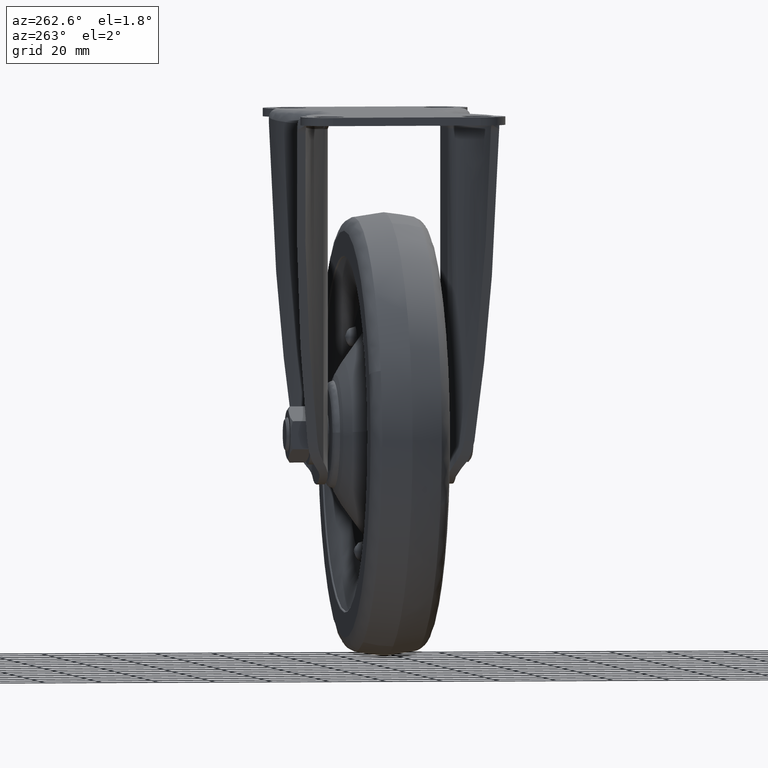
[diagram: clean part render]
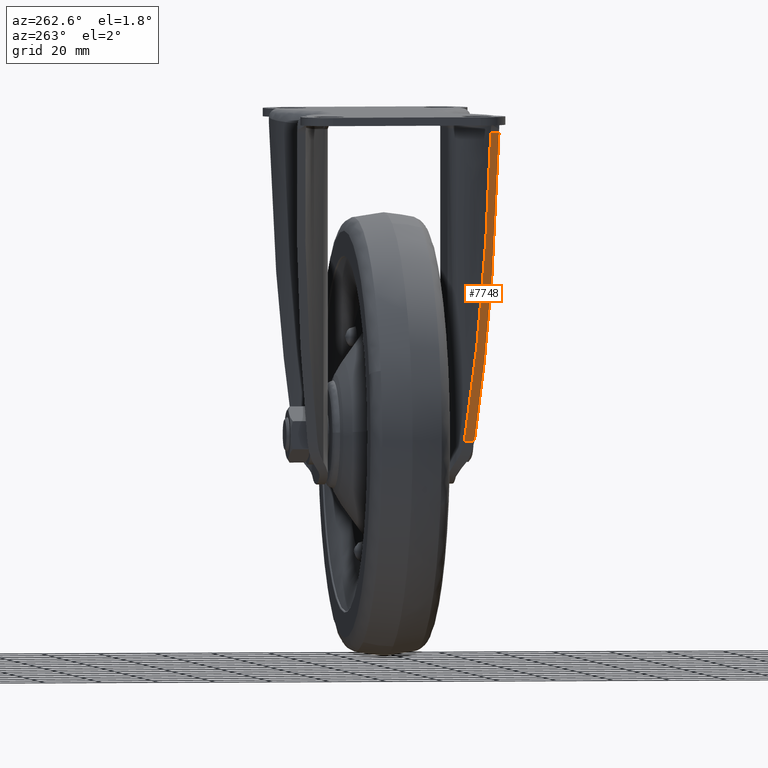
[diagram: same view with one face highlighted and labeled with its STEP entity id]
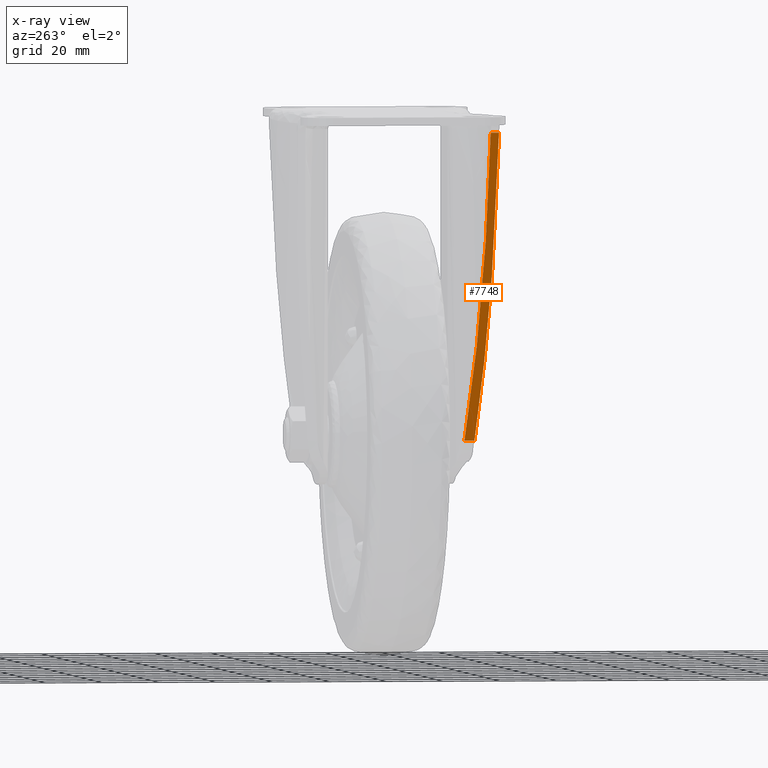
[diagram: x-ray of the same camera — body ghosted, the highlighted face saturated]
A machine part, auxiliary view. The second image highlights one B-rep face of the part: STEP entity #7748.
The next image is the same camera in x-ray: the body ghosted, the highlighted face saturated — about 0% of this face is hidden behind the body in this view.
In plain terms, the highlighted face is a freeform B-spline surface patch.
Its self-contained STEP definition (entity closure, byte-faithful):
#5961=CARTESIAN_POINT('',(-38.384969815767107,-32.595007900842553,-6.183895033378120));
#5962=VERTEX_POINT('',#5961);
#6040=CARTESIAN_POINT('',(-18.693041682196601,-25.869434690258650,-114.401500746498200));
#6041=VERTEX_POINT('',#6040);
#6061=CARTESIAN_POINT('',(-38.384969815767107,-32.595007900842553,-6.183895033378120));
#6062=CARTESIAN_POINT('',(-27.454555737698527,-32.407402208464745,-66.252326776485901));
#6063=CARTESIAN_POINT('',(-18.693041682196601,-25.869434690258679,-114.401500746498200));
#6071=(BOUNDED_CURVE()B_SPLINE_CURVE(2,(#6061,#6062,#6063),.UNSPECIFIED.,.F.,.U.)CURVE()GEOMETRIC_REPRESENTATION_ITEM()QUASI_UNIFORM_CURVE()RATIONAL_B_SPLINE_CURVE((1.0,0.951735064180671,1.0))REPRESENTATION_ITEM(''));
#6072=EDGE_CURVE('',#5962,#6041,#6071,.T.);
#6264=CARTESIAN_POINT('',(-38.384969815767107,-35.495401359037047,-6.183895033378110));
#6265=VERTEX_POINT('',#6264);
#6275=CARTESIAN_POINT('',(-18.693041682196601,-29.411709804403500,-114.401500746498200));
#6276=VERTEX_POINT('',#6275);
#6277=CARTESIAN_POINT('',(-38.384969815767128,-35.495401359037061,-6.183895033378110));
#6278=CARTESIAN_POINT('',(-27.651675467620674,-35.325700557248780,-65.169049147891229));
#6279=CARTESIAN_POINT('',(-18.693041682196611,-29.411709804403550,-114.401500746498200));
#6287=(BOUNDED_CURVE()B_SPLINE_CURVE(2,(#6277,#6278,#6279),.UNSPECIFIED.,.F.,.U.)CURVE()GEOMETRIC_REPRESENTATION_ITEM()QUASI_UNIFORM_CURVE()RATIONAL_B_SPLINE_CURVE((1.0,0.959989373029339,1.0))REPRESENTATION_ITEM(''));
#6288=EDGE_CURVE('',#6265,#6276,#6287,.T.);
#7606=CARTESIAN_POINT('',(-38.384969815767107,-35.495401359037047,-6.183895033378110));
#7607=CARTESIAN_POINT('',(-38.384969815767107,-32.595007900842553,-6.183895033378120));
#7608=QUASI_UNIFORM_CURVE('',1,(#7606,#7607),.UNSPECIFIED.,.F.,.U.);
#7609=EDGE_CURVE('',#6265,#5962,#7608,.T.);
#7733=CARTESIAN_POINT('',(-39.368581587872242,-35.976218375485537,-0.778425837754493));
#7734=CARTESIAN_POINT('',(-17.709429381912908,-35.976218375485537,-119.806972844744190));
#7735=CARTESIAN_POINT('',(-39.368581587872242,-25.388617415621621,-0.778425837754493));
#7736=CARTESIAN_POINT('',(-17.709429381912908,-25.388617415621621,-119.806972844744190));
#7737=B_SPLINE_SURFACE_WITH_KNOTS('',1,1,((#7733,#7735),(#7734,#7736)),.UNSPECIFIED.,.F.,.F.,.U.,(2,2),(2,2),(0.0,120.983114015452900),(0.0,10.587600959863920),.UNSPECIFIED.);
#7738=ORIENTED_EDGE('',*,*,#6288,.F.);
#7739=ORIENTED_EDGE('',*,*,#7609,.T.);
#7740=ORIENTED_EDGE('',*,*,#6072,.T.);
#7741=CARTESIAN_POINT('',(-18.693041682196601,-25.869434690258650,-114.401500746498200));
#7742=CARTESIAN_POINT('',(-18.693041682196601,-29.411709804403500,-114.401500746498200));
#7743=QUASI_UNIFORM_CURVE('',1,(#7741,#7742),.UNSPECIFIED.,.F.,.U.);
#7744=EDGE_CURVE('',#6041,#6276,#7743,.T.);
#7745=ORIENTED_EDGE('',*,*,#7744,.T.);
#7746=EDGE_LOOP('',(#7738,#7739,#7740,#7745));
#7747=FACE_OUTER_BOUND('',#7746,.T.);
#7748=ADVANCED_FACE('',(#7747),#7737,.F.);